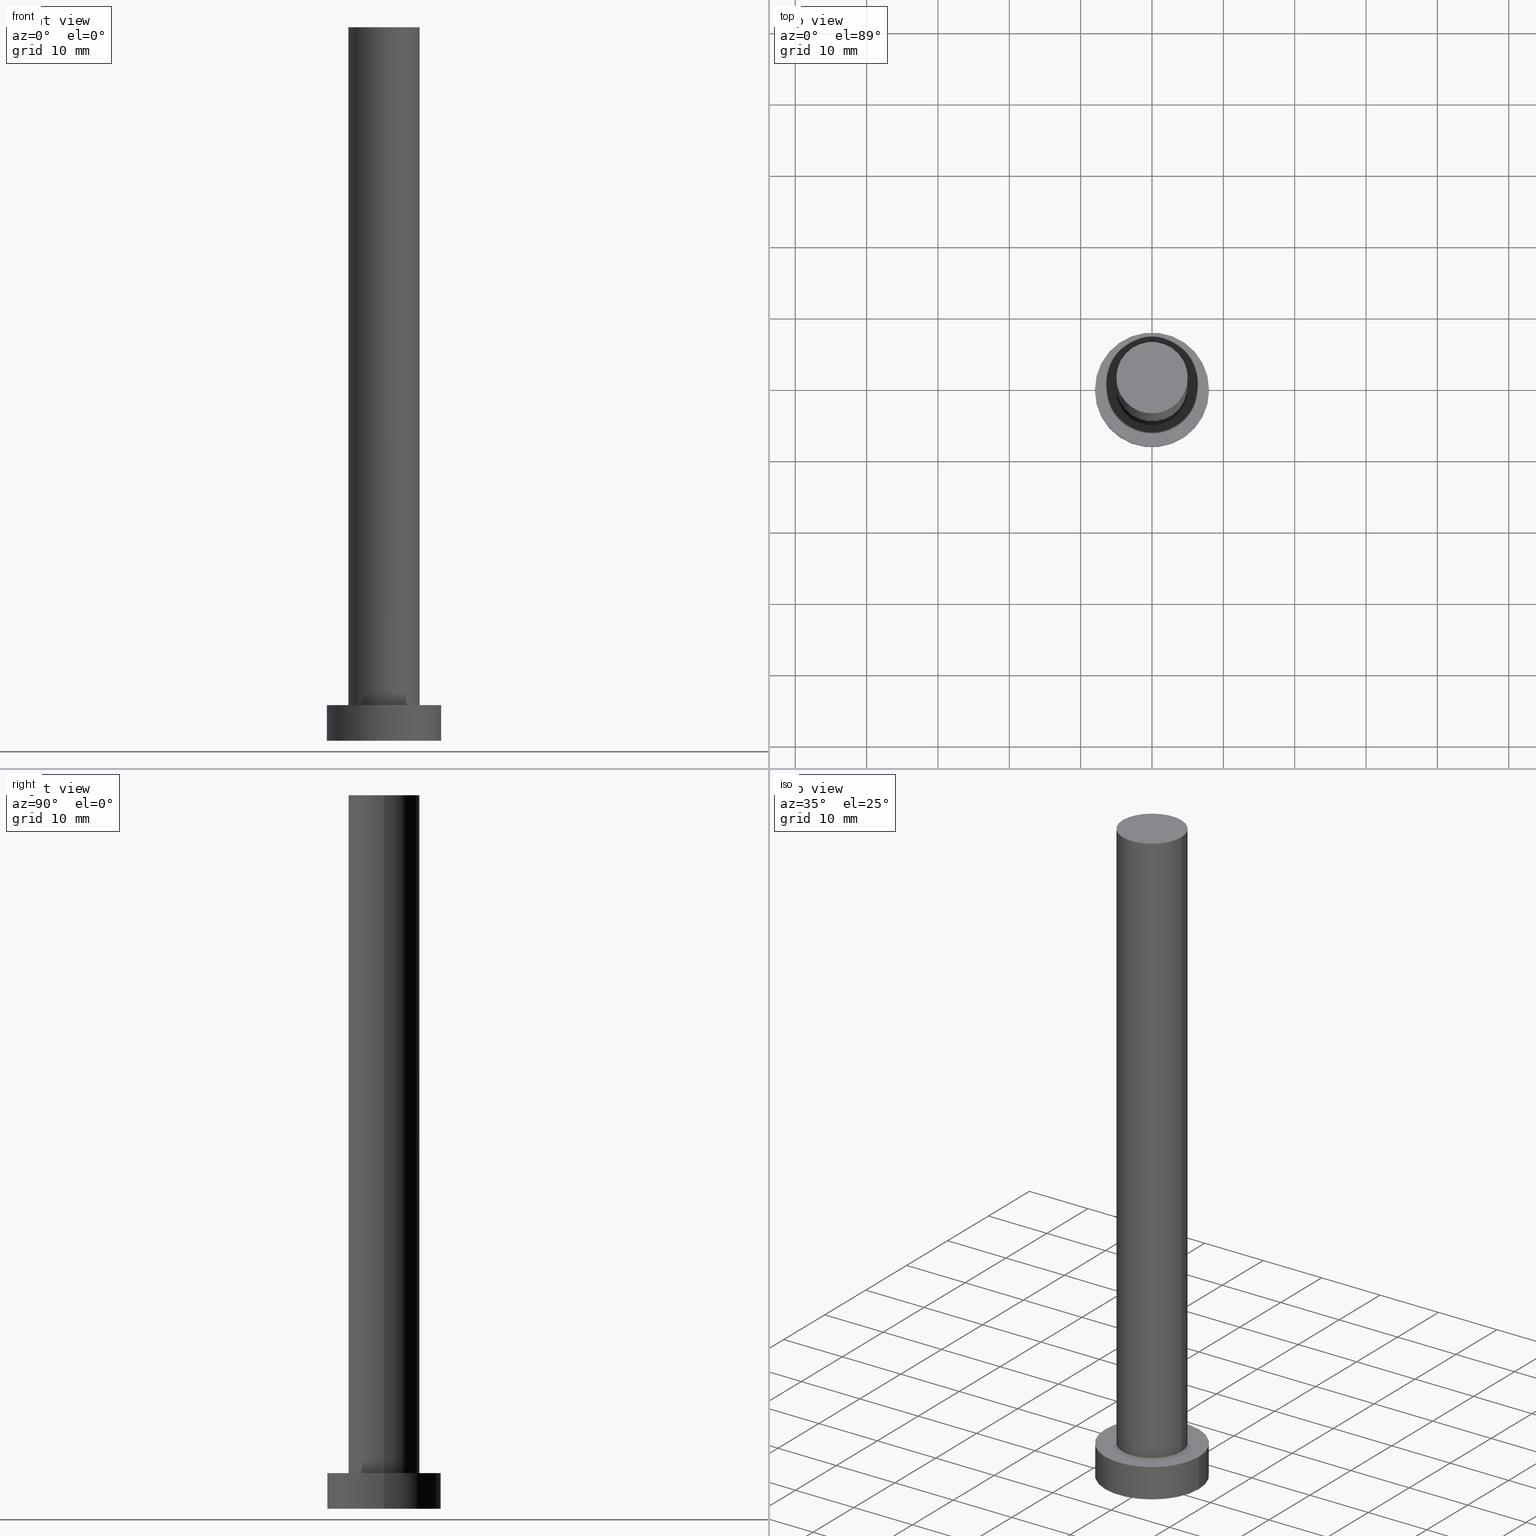
[diagram: canonical four-view strip — front | top / right | iso, engineering-drawing reading convention]
A machine part, canonical four-view strip (front | top / right | iso — engineering-drawing reading convention). The complete STEP part file that produces these views, byte-faithful:
ISO-10303-21;
HEADER;
FILE_DESCRIPTION (( 'STEP AP203' ),
    '1' );
FILE_NAME ('5a1e.STEP',
    '2023-02-13T12:07:30',
    ( '' ),
    ( '' ),
    'SwSTEP 2.0',
    'SolidWorks 2019',
    '' );
FILE_SCHEMA (( 'CONFIG_CONTROL_DESIGN' ));
ENDSEC;

DATA;
#1 = CARTESIAN_POINT ( 'NONE',  ( 8.000000000000000000, 9.797174393178825657E-16, 5.000000000000000000 ) ) ;
#2 = PERSON_AND_ORGANIZATION ( #129, #8 ) ;
#3 = DIRECTION ( 'NONE',  ( 0.000000000000000000, 0.000000000000000000, 1.000000000000000000 ) ) ;
#4 = APPROVAL_STATUS ( 'not_yet_approved' ) ;
#5 = APPLICATION_CONTEXT ( 'configuration controlled 3d designs of mechanical parts and assemblies' ) ;
#6 = EDGE_CURVE ( 'NONE', #194, #244, #123, .T. ) ;
#7 = ORIENTED_EDGE ( 'NONE', *, *, #41, .T. ) ;
#8 = ORGANIZATION ( 'NEUR�EN�', 'NEUR�EN�', '' ) ;
#9 = ORIENTED_EDGE ( 'NONE', *, *, #192, .T. ) ;
#10 = CC_DESIGN_PERSON_AND_ORGANIZATION_ASSIGNMENT ( #2, #19, ( #173 ) ) ;
#11 = UNCERTAINTY_MEASURE_WITH_UNIT (LENGTH_MEASURE( 1.000000000000000082E-05 ), #42, 'distance_accuracy_value', 'NONE');
#12 = CARTESIAN_POINT ( 'NONE',  ( 0.000000000000000000, 0.000000000000000000, 100.0000000000000000 ) ) ;
#13 = CARTESIAN_POINT ( 'NONE',  ( 0.000000000000000000, 0.000000000000000000, 0.000000000000000000 ) ) ;
#14 = CC_DESIGN_APPROVAL ( #127, ( #23 ) ) ;
#15 = FACE_OUTER_BOUND ( 'NONE', #133, .T. ) ;
#16 = CYLINDRICAL_SURFACE ( 'NONE', #213, 5.000000000000000888 ) ;
#17 = ADVANCED_FACE ( 'NONE', ( #33, #97 ), #150, .T. ) ;
#18 = LINE ( 'NONE', #179, #161 ) ;
#19 = PERSON_AND_ORGANIZATION_ROLE ( 'creator' ) ;
#20 = CARTESIAN_POINT ( 'NONE',  ( -5.000000000000000888, 0.000000000000000000, 100.0000000000000000 ) ) ;
#21 = MANIFOLD_SOLID_BREP ( 'P�idat vysunut�m3', #108 ) ;
#22 = MECHANICAL_CONTEXT ( 'NONE', #72, 'mechanical' ) ;
#23 = PRODUCT_DEFINITION_FORMATION_WITH_SPECIFIED_SOURCE ( 'LIBOVOLN�', '', #245, .NOT_KNOWN. ) ;
#24 = APPROVAL_DATE_TIME ( #71, #217 ) ;
#25 = CIRCLE ( 'NONE', #255, 8.000000000000000000 ) ;
#26 = CALENDAR_DATE ( 2023, 13, 2 ) ;
#27 = ORIENTED_EDGE ( 'NONE', *, *, #48, .T. ) ;
#28 = ORIENTED_EDGE ( 'NONE', *, *, #89, .T. ) ;
#29 = EDGE_LOOP ( 'NONE', ( #222, #149, #128, #92 ) ) ;
#30 = CIRCLE ( 'NONE', #67, 8.000000000000000000 ) ;
#31 = DIRECTION ( 'NONE',  ( 1.000000000000000000, 0.000000000000000000, -0.000000000000000000 ) ) ;
#32 = ADVANCED_BREP_SHAPE_REPRESENTATION ( '5a1e', ( #21, #78 ), #105 ) ;
#33 = FACE_BOUND ( 'NONE', #189, .T. ) ;
#34 = ORIENTED_EDGE ( 'NONE', *, *, #155, .T. ) ;
#35 = AXIS2_PLACEMENT_3D ( 'NONE', #211, #56, #252 ) ;
#36 = FACE_OUTER_BOUND ( 'NONE', #29, .T. ) ;
#37 = ADVANCED_FACE ( 'NONE', ( #214 ), #199, .T. ) ;
#38 = CARTESIAN_POINT ( 'NONE',  ( 8.000000000000000000, 9.797174393178825657E-16, 5.000000000000000000 ) ) ;
#39 = LOCAL_TIME ( 13, 7, 30.00000000000000000, #65 ) ;
#40 = DATE_AND_TIME ( #157, #130 ) ;
#41 = EDGE_CURVE ( 'NONE', #210, #194, #117, .T. ) ;
#42 =( LENGTH_UNIT ( ) NAMED_UNIT ( * ) SI_UNIT ( .MILLI., .METRE. ) );
#43 = CARTESIAN_POINT ( 'NONE',  ( 0.000000000000000000, 0.000000000000000000, 5.000000000000000000 ) ) ;
#44 =( NAMED_UNIT ( * ) PLANE_ANGLE_UNIT ( ) SI_UNIT ( $, .RADIAN. ) );
#45 = AXIS2_PLACEMENT_3D ( 'NONE', #12, #96, #66 ) ;
#46 = APPROVAL_STATUS ( 'not_yet_approved' ) ;
#47 = ORIENTED_EDGE ( 'NONE', *, *, #192, .F. ) ;
#48 = EDGE_CURVE ( 'NONE', #244, #194, #25, .T. ) ;
#49 = APPROVAL_PERSON_ORGANIZATION ( #85, #127, #90 ) ;
#50 = PERSON_AND_ORGANIZATION ( #129, #8 ) ;
#51 = ORIENTED_EDGE ( 'NONE', *, *, #104, .T. ) ;
#52 = PLANE ( 'NONE',  #176 ) ;
#53 = ADVANCED_FACE ( 'NONE', ( #230 ), #52, .F. ) ;
#54 = CIRCLE ( 'NONE', #124, 5.000000000000000888 ) ;
#55 = CARTESIAN_POINT ( 'NONE',  ( 0.000000000000000000, 0.000000000000000000, 5.000000000000000000 ) ) ;
#56 = DIRECTION ( 'NONE',  ( -0.000000000000000000, -0.000000000000000000, -1.000000000000000000 ) ) ;
#57 = APPROVAL ( #4, 'NEUR�EN�' ) ;
#58 = DIRECTION ( 'NONE',  ( 1.000000000000000000, 0.000000000000000000, 0.000000000000000000 ) ) ;
#59 = CARTESIAN_POINT ( 'NONE',  ( 0.000000000000000000, 0.000000000000000000, 5.000000000000000000 ) ) ;
#60 = CARTESIAN_POINT ( 'NONE',  ( 0.000000000000000000, 0.000000000000000000, 5.000000000000000000 ) ) ;
#61 = DIRECTION ( 'NONE',  ( 0.000000000000000000, 0.000000000000000000, 1.000000000000000000 ) ) ;
#62 = EDGE_CURVE ( 'NONE', #75, #95, #18, .T. ) ;
#63 = CARTESIAN_POINT ( 'NONE',  ( 0.000000000000000000, 0.000000000000000000, 0.000000000000000000 ) ) ;
#64 = LOCAL_TIME ( 13, 7, 30.00000000000000000, #241 ) ;
#65 = COORDINATED_UNIVERSAL_TIME_OFFSET ( 1, 0, .AHEAD. ) ;
#66 = DIRECTION ( 'NONE',  ( -1.000000000000000000, 0.000000000000000000, 0.000000000000000000 ) ) ;
#67 = AXIS2_PLACEMENT_3D ( 'NONE', #120, #76, #119 ) ;
#68 = VERTEX_POINT ( 'NONE', #195 ) ;
#69 = DATE_TIME_ROLE ( 'classification_date' ) ;
#70 = ORIENTED_EDGE ( 'NONE', *, *, #6, .T. ) ;
#71 = DATE_AND_TIME ( #186, #165 ) ;
#72 = APPLICATION_CONTEXT ( 'configuration controlled 3d designs of mechanical parts and assemblies' ) ;
#73 = AXIS2_PLACEMENT_3D ( 'NONE', #55, #151, #135 ) ;
#74 = PERSON_AND_ORGANIZATION_ROLE ( 'creator' ) ;
#75 = VERTEX_POINT ( 'NONE', #79 ) ;
#76 = DIRECTION ( 'NONE',  ( 0.000000000000000000, 0.000000000000000000, 1.000000000000000000 ) ) ;
#77 = CARTESIAN_POINT ( 'NONE',  ( 0.000000000000000000, 0.000000000000000000, 0.000000000000000000 ) ) ;
#78 = AXIS2_PLACEMENT_3D ( 'NONE', #63, #185, #122 ) ;
#79 = CARTESIAN_POINT ( 'NONE',  ( 5.000000000000000888, 6.123233995736767268E-16, 100.0000000000000000 ) ) ;
#80 = ADVANCED_FACE ( 'NONE', ( #136 ), #174, .T. ) ;
#81 = CARTESIAN_POINT ( 'NONE',  ( 0.000000000000000000, 0.000000000000000000, 100.0000000000000000 ) ) ;
#82 = DIRECTION ( 'NONE',  ( 0.000000000000000000, 0.000000000000000000, 1.000000000000000000 ) ) ;
#83 = AXIS2_PLACEMENT_3D ( 'NONE', #60, #61, #218 ) ;
#84 = PERSON_AND_ORGANIZATION ( #129, #8 ) ;
#85 = PERSON_AND_ORGANIZATION ( #129, #8 ) ;
#86 = CC_DESIGN_PERSON_AND_ORGANIZATION_ASSIGNMENT ( #132, #225, ( #196 ) ) ;
#87 = DATE_AND_TIME ( #101, #39 ) ;
#88 = CIRCLE ( 'NONE', #200, 5.000000000000000888 ) ;
#89 = EDGE_CURVE ( 'NONE', #210, #171, #30, .T. ) ;
#90 = APPROVAL_ROLE ( '' ) ;
#91 = PERSON_AND_ORGANIZATION_ROLE ( 'design_supplier' ) ;
#92 = ORIENTED_EDGE ( 'NONE', *, *, #226, .F. ) ;
#93 = ADVANCED_FACE ( 'NONE', ( #15 ), #98, .T. ) ;
#94 = ORIENTED_EDGE ( 'NONE', *, *, #6, .F. ) ;
#95 = VERTEX_POINT ( 'NONE', #248 ) ;
#96 = DIRECTION ( 'NONE',  ( -0.000000000000000000, -0.000000000000000000, -1.000000000000000000 ) ) ;
#97 = FACE_OUTER_BOUND ( 'NONE', #114, .T. ) ;
#98 = PLANE ( 'NONE',  #208 ) ;
#99 = DIRECTION ( 'NONE',  ( -1.000000000000000000, 0.000000000000000000, 0.000000000000000000 ) ) ;
#100 = LINE ( 'NONE', #182, #141 ) ;
#101 = CALENDAR_DATE ( 2023, 13, 2 ) ;
#102 = PERSON_AND_ORGANIZATION ( #129, #8 ) ;
#103 = CARTESIAN_POINT ( 'NONE',  ( -8.000000000000000000, 0.000000000000000000, 5.000000000000000000 ) ) ;
#104 = EDGE_CURVE ( 'NONE', #75, #68, #166, .T. ) ;
#105 =( GEOMETRIC_REPRESENTATION_CONTEXT ( 3 ) GLOBAL_UNCERTAINTY_ASSIGNED_CONTEXT ( ( #11 ) ) GLOBAL_UNIT_ASSIGNED_CONTEXT ( ( #42, #44, #139 ) ) REPRESENTATION_CONTEXT ( 'NONE', 'WORKASPACE' ) );
#106 = APPLICATION_PROTOCOL_DEFINITION ( 'international standard', 'config_control_design', 1994, #72 ) ;
#107 = SECURITY_CLASSIFICATION_LEVEL ( 'unclassified' ) ;
#108 = CLOSED_SHELL ( 'NONE', ( #113, #37, #80, #17, #53, #160, #93 ) ) ;
#109 = CIRCLE ( 'NONE', #83, 5.000000000000000888 ) ;
#110 = EDGE_LOOP ( 'NONE', ( #247, #190, #147, #168 ) ) ;
#111 = ORIENTED_EDGE ( 'NONE', *, *, #48, .F. ) ;
#112 = CALENDAR_DATE ( 2023, 13, 2 ) ;
#113 = ADVANCED_FACE ( 'NONE', ( #36 ), #16, .T. ) ;
#114 = EDGE_LOOP ( 'NONE', ( #206, #28 ) ) ;
#115 = VECTOR ( 'NONE', #175, 1000.000000000000000 ) ;
#116 = DIRECTION ( 'NONE',  ( 1.000000000000000000, 0.000000000000000000, 0.000000000000000000 ) ) ;
#117 = LINE ( 'NONE', #38, #115 ) ;
#118 = CC_DESIGN_DATE_AND_TIME_ASSIGNMENT ( #191, #69, ( #196 ) ) ;
#119 = DIRECTION ( 'NONE',  ( 1.000000000000000000, 0.000000000000000000, 0.000000000000000000 ) ) ;
#120 = CARTESIAN_POINT ( 'NONE',  ( 0.000000000000000000, 0.000000000000000000, 5.000000000000000000 ) ) ;
#121 = DIRECTION ( 'NONE',  ( 1.000000000000000000, 0.000000000000000000, 0.000000000000000000 ) ) ;
#122 = DIRECTION ( 'NONE',  ( 1.000000000000000000, 0.000000000000000000, 0.000000000000000000 ) ) ;
#123 = CIRCLE ( 'NONE', #235, 8.000000000000000000 ) ;
#124 = AXIS2_PLACEMENT_3D ( 'NONE', #134, #82, #116 ) ;
#125 = APPROVAL_DATE_TIME ( #40, #57 ) ;
#126 = PRODUCT_RELATED_PRODUCT_CATEGORY ( 'detail', '', ( #245 ) ) ;
#127 = APPROVAL ( #142, 'NEUR�EN�' ) ;
#128 = ORIENTED_EDGE ( 'NONE', *, *, #205, .T. ) ;
#129 = PERSON ( 'NEUR�EN�', 'NEUR�EN�', 'NEUR�EN�', ('NEUR�EN�'), ('NEUR�EN�'), ('NEUR�EN�') ) ;
#130 = LOCAL_TIME ( 13, 7, 30.00000000000000000, #237 ) ;
#131 = VERTEX_POINT ( 'NONE', #180 ) ;
#132 = PERSON_AND_ORGANIZATION ( #129, #8 ) ;
#133 = EDGE_LOOP ( 'NONE', ( #34, #51 ) ) ;
#134 = CARTESIAN_POINT ( 'NONE',  ( 0.000000000000000000, 0.000000000000000000, 100.0000000000000000 ) ) ;
#135 = DIRECTION ( 'NONE',  ( -1.000000000000000000, 0.000000000000000000, 0.000000000000000000 ) ) ;
#136 = FACE_OUTER_BOUND ( 'NONE', #227, .T. ) ;
#137 = CARTESIAN_POINT ( 'NONE',  ( 0.000000000000000000, 0.000000000000000000, 100.0000000000000000 ) ) ;
#138 = DIRECTION ( 'NONE',  ( 1.000000000000000000, 0.000000000000000000, 0.000000000000000000 ) ) ;
#139 =( NAMED_UNIT ( * ) SI_UNIT ( $, .STERADIAN. ) SOLID_ANGLE_UNIT ( ) );
#140 = DIRECTION ( 'NONE',  ( 1.000000000000000000, 0.000000000000000000, 0.000000000000000000 ) ) ;
#141 = VECTOR ( 'NONE', #159, 1000.000000000000000 ) ;
#142 = APPROVAL_STATUS ( 'not_yet_approved' ) ;
#143 = CARTESIAN_POINT ( 'NONE',  ( 0.000000000000000000, 0.000000000000000000, 5.000000000000000000 ) ) ;
#144 = CC_DESIGN_PERSON_AND_ORGANIZATION_ASSIGNMENT ( #188, #74, ( #23 ) ) ;
#145 = ORIENTED_EDGE ( 'NONE', *, *, #205, .F. ) ;
#146 = AXIS2_PLACEMENT_3D ( 'NONE', #59, #249, #231 ) ;
#147 = ORIENTED_EDGE ( 'NONE', *, *, #226, .T. ) ;
#148 = COORDINATED_UNIVERSAL_TIME_OFFSET ( 1, 0, .AHEAD. ) ;
#149 = ORIENTED_EDGE ( 'NONE', *, *, #62, .T. ) ;
#150 = PLANE ( 'NONE',  #146 ) ;
#151 = DIRECTION ( 'NONE',  ( -0.000000000000000000, -0.000000000000000000, -1.000000000000000000 ) ) ;
#152 = CC_DESIGN_DATE_AND_TIME_ASSIGNMENT ( #87, #181, ( #173 ) ) ;
#153 = DIRECTION ( 'NONE',  ( -0.000000000000000000, -0.000000000000000000, -1.000000000000000000 ) ) ;
#154 = DIRECTION ( 'NONE',  ( 1.000000000000000000, 0.000000000000000000, -0.000000000000000000 ) ) ;
#155 = EDGE_CURVE ( 'NONE', #68, #75, #54, .T. ) ;
#156 = FACE_OUTER_BOUND ( 'NONE', #110, .T. ) ;
#157 = CALENDAR_DATE ( 2023, 13, 2 ) ;
#158 = PERSON_AND_ORGANIZATION_ROLE ( 'design_owner' ) ;
#159 = DIRECTION ( 'NONE',  ( -0.000000000000000000, -0.000000000000000000, -1.000000000000000000 ) ) ;
#160 = ADVANCED_FACE ( 'NONE', ( #156 ), #193, .T. ) ;
#161 = VECTOR ( 'NONE', #153, 1000.000000000000000 ) ;
#162 = APPROVAL_PERSON_ORGANIZATION ( #84, #57, #201 ) ;
#163 = APPLICATION_PROTOCOL_DEFINITION ( 'international standard', 'config_control_design', 1994, #5 ) ;
#164 = CARTESIAN_POINT ( 'NONE',  ( 8.000000000000000000, 9.797174393178825657E-16, 0.000000000000000000 ) ) ;
#165 = LOCAL_TIME ( 13, 7, 30.00000000000000000, #223 ) ;
#166 = CIRCLE ( 'NONE', #243, 5.000000000000000888 ) ;
#167 = ORIENTED_EDGE ( 'NONE', *, *, #202, .F. ) ;
#168 = ORIENTED_EDGE ( 'NONE', *, *, #202, .T. ) ;
#169 = PERSON_AND_ORGANIZATION ( #129, #8 ) ;
#170 = ORIENTED_EDGE ( 'NONE', *, *, #41, .F. ) ;
#171 = VERTEX_POINT ( 'NONE', #103 ) ;
#172 = ORIENTED_EDGE ( 'NONE', *, *, #232, .F. ) ;
#173 = PRODUCT_DEFINITION ( 'NEZN�M�', '', #23, #224 ) ;
#174 = CYLINDRICAL_SURFACE ( 'NONE', #35, 8.000000000000000000 ) ;
#175 = DIRECTION ( 'NONE',  ( -0.000000000000000000, -0.000000000000000000, -1.000000000000000000 ) ) ;
#176 = AXIS2_PLACEMENT_3D ( 'NONE', #209, #250, #154 ) ;
#177 = VECTOR ( 'NONE', #236, 1000.000000000000000 ) ;
#178 = APPROVAL_PERSON_ORGANIZATION ( #50, #217, #204 ) ;
#179 = CARTESIAN_POINT ( 'NONE',  ( 5.000000000000000888, 6.123233995736767268E-16, 100.0000000000000000 ) ) ;
#180 = CARTESIAN_POINT ( 'NONE',  ( -5.000000000000000888, 0.000000000000000000, 5.000000000000000000 ) ) ;
#181 = DATE_TIME_ROLE ( 'creation_date' ) ;
#182 = CARTESIAN_POINT ( 'NONE',  ( -8.000000000000000000, 0.000000000000000000, 5.000000000000000000 ) ) ;
#183 = PRODUCT_DEFINITION_SHAPE ( 'NONE', 'NONE',  #173 ) ;
#184 = LINE ( 'NONE', #20, #177 ) ;
#185 = DIRECTION ( 'NONE',  ( 0.000000000000000000, 0.000000000000000000, 1.000000000000000000 ) ) ;
#186 = CALENDAR_DATE ( 2023, 13, 2 ) ;
#187 = SHAPE_DEFINITION_REPRESENTATION ( #183, #32 ) ;
#188 = PERSON_AND_ORGANIZATION ( #129, #8 ) ;
#189 = EDGE_LOOP ( 'NONE', ( #167, #145 ) ) ;
#190 = ORIENTED_EDGE ( 'NONE', *, *, #155, .F. ) ;
#191 = DATE_AND_TIME ( #26, #203 ) ;
#192 = EDGE_CURVE ( 'NONE', #171, #244, #100, .T. ) ;
#193 = CYLINDRICAL_SURFACE ( 'NONE', #45, 5.000000000000000888 ) ;
#194 = VERTEX_POINT ( 'NONE', #164 ) ;
#195 = CARTESIAN_POINT ( 'NONE',  ( -5.000000000000000888, 0.000000000000000000, 100.0000000000000000 ) ) ;
#196 = SECURITY_CLASSIFICATION ( '', '', #107 ) ;
#197 = CC_DESIGN_PERSON_AND_ORGANIZATION_ASSIGNMENT ( #169, #91, ( #23 ) ) ;
#198 = DIRECTION ( 'NONE',  ( 0.000000000000000000, 0.000000000000000000, 1.000000000000000000 ) ) ;
#199 = CYLINDRICAL_SURFACE ( 'NONE', #73, 8.000000000000000000 ) ;
#200 = AXIS2_PLACEMENT_3D ( 'NONE', #143, #216, #238 ) ;
#201 = APPROVAL_ROLE ( '' ) ;
#202 = EDGE_CURVE ( 'NONE', #131, #95, #109, .T. ) ;
#203 = LOCAL_TIME ( 13, 7, 30.00000000000000000, #148 ) ;
#204 = APPROVAL_ROLE ( '' ) ;
#205 = EDGE_CURVE ( 'NONE', #95, #131, #88, .T. ) ;
#206 = ORIENTED_EDGE ( 'NONE', *, *, #232, .T. ) ;
#207 = EDGE_LOOP ( 'NONE', ( #221, #7, #70, #47 ) ) ;
#208 = AXIS2_PLACEMENT_3D ( 'NONE', #234, #233, #31 ) ;
#209 = CARTESIAN_POINT ( 'NONE',  ( 0.000000000000000000, 0.000000000000000000, 0.000000000000000000 ) ) ;
#210 = VERTEX_POINT ( 'NONE', #1 ) ;
#211 = CARTESIAN_POINT ( 'NONE',  ( 0.000000000000000000, 0.000000000000000000, 5.000000000000000000 ) ) ;
#212 = DIRECTION ( 'NONE',  ( -0.000000000000000000, -0.000000000000000000, -1.000000000000000000 ) ) ;
#213 = AXIS2_PLACEMENT_3D ( 'NONE', #137, #212, #99 ) ;
#214 = FACE_OUTER_BOUND ( 'NONE', #207, .T. ) ;
#215 = CC_DESIGN_APPROVAL ( #57, ( #173 ) ) ;
#216 = DIRECTION ( 'NONE',  ( 0.000000000000000000, 0.000000000000000000, 1.000000000000000000 ) ) ;
#217 = APPROVAL ( #46, 'NEUR�EN�' ) ;
#218 = DIRECTION ( 'NONE',  ( 1.000000000000000000, 0.000000000000000000, 0.000000000000000000 ) ) ;
#219 = AXIS2_PLACEMENT_3D ( 'NONE', #43, #3, #140 ) ;
#220 = DATE_AND_TIME ( #112, #64 ) ;
#221 = ORIENTED_EDGE ( 'NONE', *, *, #89, .F. ) ;
#222 = ORIENTED_EDGE ( 'NONE', *, *, #104, .F. ) ;
#223 = COORDINATED_UNIVERSAL_TIME_OFFSET ( 1, 0, .AHEAD. ) ;
#224 = DESIGN_CONTEXT ( 'detailed design', #5, 'design' ) ;
#225 = PERSON_AND_ORGANIZATION_ROLE ( 'classification_officer' ) ;
#226 = EDGE_CURVE ( 'NONE', #68, #131, #184, .T. ) ;
#227 = EDGE_LOOP ( 'NONE', ( #170, #172, #9, #27 ) ) ;
#228 = DIRECTION ( 'NONE',  ( 0.000000000000000000, 0.000000000000000000, 1.000000000000000000 ) ) ;
#229 = CC_DESIGN_APPROVAL ( #217, ( #196 ) ) ;
#230 = FACE_OUTER_BOUND ( 'NONE', #242, .T. ) ;
#231 = DIRECTION ( 'NONE',  ( 1.000000000000000000, 0.000000000000000000, -0.000000000000000000 ) ) ;
#232 = EDGE_CURVE ( 'NONE', #171, #210, #239, .T. ) ;
#233 = DIRECTION ( 'NONE',  ( 0.000000000000000000, 0.000000000000000000, 1.000000000000000000 ) ) ;
#234 = CARTESIAN_POINT ( 'NONE',  ( 0.000000000000000000, 0.000000000000000000, 100.0000000000000000 ) ) ;
#235 = AXIS2_PLACEMENT_3D ( 'NONE', #13, #253, #138 ) ;
#236 = DIRECTION ( 'NONE',  ( -0.000000000000000000, -0.000000000000000000, -1.000000000000000000 ) ) ;
#237 = COORDINATED_UNIVERSAL_TIME_OFFSET ( 1, 0, .AHEAD. ) ;
#238 = DIRECTION ( 'NONE',  ( 1.000000000000000000, 0.000000000000000000, 0.000000000000000000 ) ) ;
#239 = CIRCLE ( 'NONE', #219, 8.000000000000000000 ) ;
#240 = CARTESIAN_POINT ( 'NONE',  ( -8.000000000000000000, 0.000000000000000000, 0.000000000000000000 ) ) ;
#241 = COORDINATED_UNIVERSAL_TIME_OFFSET ( 1, 0, .AHEAD. ) ;
#242 = EDGE_LOOP ( 'NONE', ( #111, #94 ) ) ;
#243 = AXIS2_PLACEMENT_3D ( 'NONE', #81, #228, #58 ) ;
#244 = VERTEX_POINT ( 'NONE', #240 ) ;
#245 = PRODUCT ( '5a1e', '5a1e', '', ( #22 ) ) ;
#246 = APPROVAL_DATE_TIME ( #220, #127 ) ;
#247 = ORIENTED_EDGE ( 'NONE', *, *, #62, .F. ) ;
#248 = CARTESIAN_POINT ( 'NONE',  ( 5.000000000000000888, 6.123233995736767268E-16, 5.000000000000000000 ) ) ;
#249 = DIRECTION ( 'NONE',  ( 0.000000000000000000, 0.000000000000000000, 1.000000000000000000 ) ) ;
#250 = DIRECTION ( 'NONE',  ( 0.000000000000000000, 0.000000000000000000, 1.000000000000000000 ) ) ;
#251 = CC_DESIGN_SECURITY_CLASSIFICATION ( #196, ( #23 ) ) ;
#252 = DIRECTION ( 'NONE',  ( -1.000000000000000000, 0.000000000000000000, 0.000000000000000000 ) ) ;
#253 = DIRECTION ( 'NONE',  ( 0.000000000000000000, 0.000000000000000000, 1.000000000000000000 ) ) ;
#254 = CC_DESIGN_PERSON_AND_ORGANIZATION_ASSIGNMENT ( #102, #158, ( #245 ) ) ;
#255 = AXIS2_PLACEMENT_3D ( 'NONE', #77, #198, #121 ) ;
ENDSEC;
END-ISO-10303-21;
